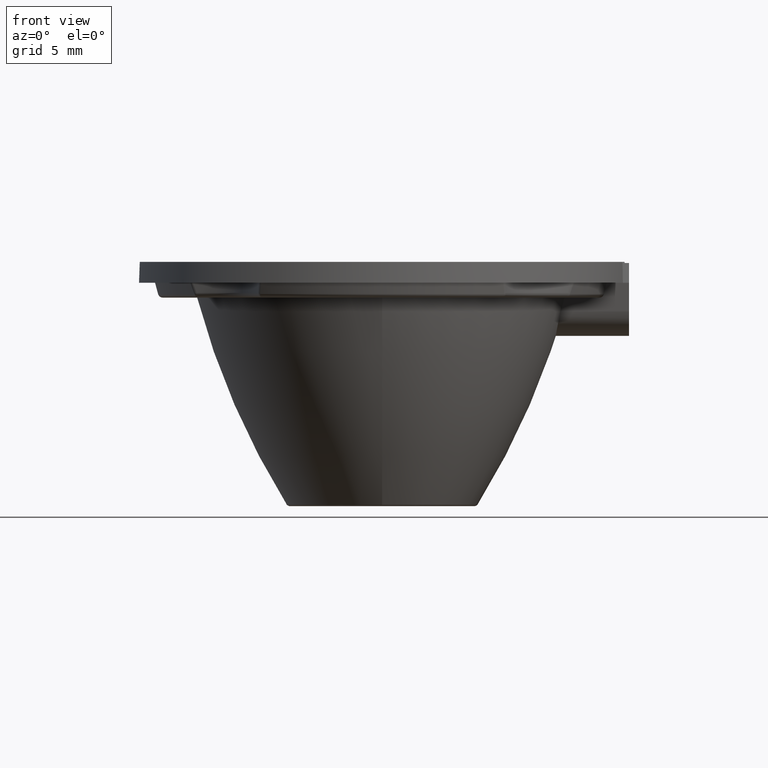
[diagram: clean part render]
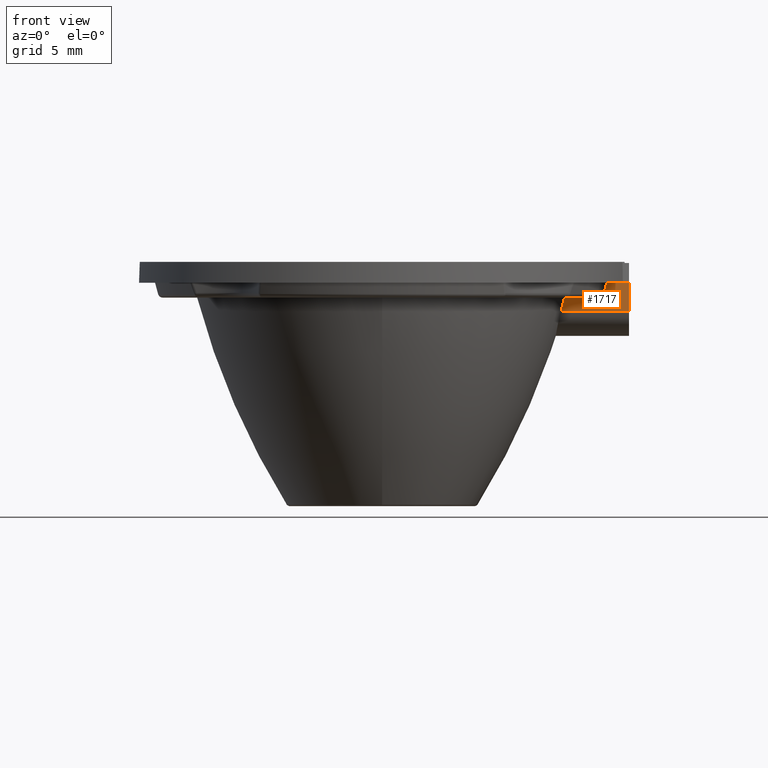
[diagram: same view with one face highlighted and labeled with its STEP entity id]
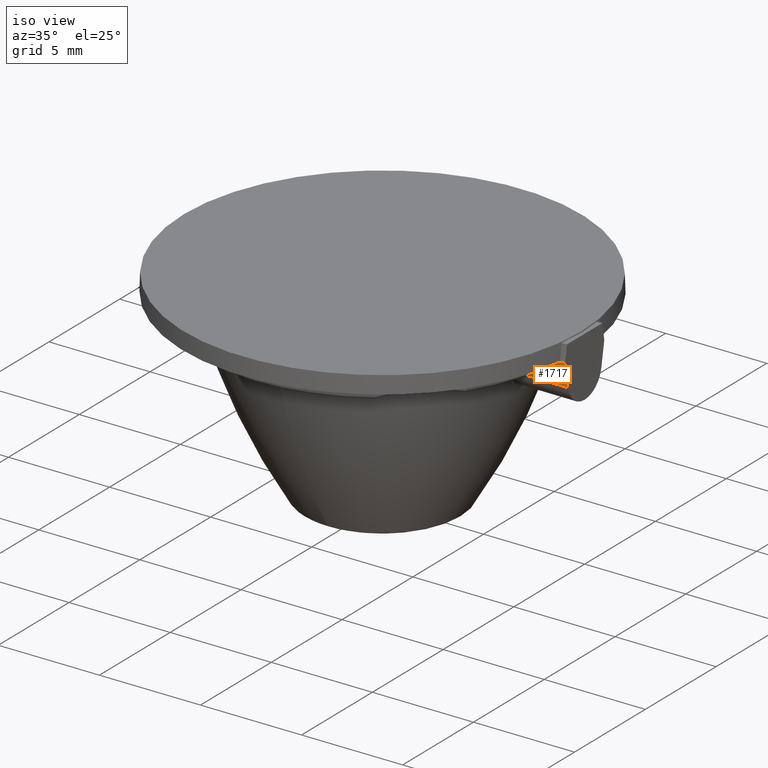
[diagram: same view with one face highlighted and labeled with its STEP entity id]
A machine part, front view. The second image highlights one B-rep face of the part: STEP entity #1717.
A second angle (iso view) of the same face is appended — the face is thin or edge-on in the first view.
In plain terms, the highlighted planar face has unit normal (-0, 0.9848, 0.1736).
Its self-contained STEP definition (entity closure, byte-faithful):
#19 = VECTOR ( 'NONE', #1369, 1000.000000000000000 ) ;
#42 = CARTESIAN_POINT ( 'NONE',  ( 9.751996792796681746, -1.386022565935929762, 10.80000000000000426 ) ) ;
#150 = CARTESIAN_POINT ( 'NONE',  ( 10.00000000000000000, -1.181769303614652156, 9.641622186799692074 ) ) ;
#151 = VECTOR ( 'NONE', #1706, 1000.000000000000000 ) ;
#209 = VECTOR ( 'NONE', #812, 1000.000000000000000 ) ;
#255 = CARTESIAN_POINT ( 'NONE',  ( 10.00000000000000000, -1.181769303614652156, 9.641622186799692074 ) ) ;
#300 = VERTEX_POINT ( 'NONE', #255 ) ;
#350 = CARTESIAN_POINT ( 'NONE',  ( 8.949712771279395795, -1.292250130334524849, 10.26819009079246214 ) ) ;
#367 = CARTESIAN_POINT ( 'NONE',  ( 10.00000000000000000, -1.386022565935929762, 10.80000000000000426 ) ) ;
#379 = VERTEX_POINT ( 'NONE', #1065 ) ;
#431 = CARTESIAN_POINT ( 'NONE',  ( 7.243942455039086070, -1.181769303614652156, 9.641622186799692074 ) ) ;
#460 = LINE ( 'NONE', #1647, #19 ) ;
#470 = EDGE_CURVE ( 'NONE', #1598, #379, #1088, .T. ) ;
#474 = CARTESIAN_POINT ( 'NONE',  ( 8.837243983094491995, -1.280226377510854441, 10.20000000000000107 ) ) ;
#503 = CARTESIAN_POINT ( 'NONE',  ( 8.793056442597512401, -1.280226377510854219, 10.20000000000000107 ) ) ;
#527 = LINE ( 'NONE', #880, #1921 ) ;
#535 = EDGE_CURVE ( 'NONE', #300, #813, #1630, .T. ) ;
#546 = ORIENTED_EDGE ( 'NONE', *, *, #1881, .T. ) ;
#564 = EDGE_CURVE ( 'NONE', #1598, #1138, #929, .T. ) ;
#602 = CARTESIAN_POINT ( 'NONE',  ( 9.021382102844702544, -1.332914264945690430, 10.49880785812326423 ) ) ;
#671 = CARTESIAN_POINT ( 'NONE',  ( 10.00000000000000000, -1.386022565935929762, 10.80000000000000426 ) ) ;
#676 = EDGE_CURVE ( 'NONE', #1312, #379, #1077, .T. ) ;
#687 = EDGE_CURVE ( 'NONE', #716, #1312, #1103, .T. ) ;
#716 = VERTEX_POINT ( 'NONE', #367 ) ;
#765 = CARTESIAN_POINT ( 'NONE',  ( 8.984472699645737137, -1.306364417498039776, 10.34823619097977243 ) ) ;
#777 = CARTESIAN_POINT ( 'NONE',  ( 8.984472699645737137, -1.306364417498039776, 10.34823619097977243 ) ) ;
#812 = DIRECTION ( 'NONE',  ( -1.000000000000000000, -0.0000000000000000000, -0.0000000000000000000 ) ) ;
#813 = VERTEX_POINT ( 'NONE', #986 ) ;
#820 = ORIENTED_EDGE ( 'NONE', *, *, #535, .F. ) ;
#880 = CARTESIAN_POINT ( 'NONE',  ( 10.00000000000000000, -1.386022565935929762, 10.80000000000000426 ) ) ;
#890 = CARTESIAN_POINT ( 'NONE',  ( 8.984472699645737137, -1.306364417498039776, 10.34823619097977243 ) ) ;
#894 = CARTESIAN_POINT ( 'NONE',  ( 10.00000000000000000, -1.386022565935929762, 10.80000000000000426 ) ) ;
#901 = CARTESIAN_POINT ( 'NONE',  ( 9.094995406635254298, -1.386022565935929762, 10.80000000000000071 ) ) ;
#929 = B_SPLINE_CURVE_WITH_KNOTS ( 'NONE', 3,
 ( #765, #1814, #350, #1829, #474, #503 ),
 .UNSPECIFIED., .F., .F.,
 ( 4, 2, 4 ),
 ( 6.526608911955533886E-17, 0.0001307138337496701816, 0.0002614276674992750942 ),
 .UNSPECIFIED. ) ;
#986 = CARTESIAN_POINT ( 'NONE',  ( 7.243942455039086070, -1.181769303614652156, 9.641622186799692074 ) ) ;
#1029 = EDGE_CURVE ( 'NONE', #716, #300, #527, .T. ) ;
#1065 = CARTESIAN_POINT ( 'NONE',  ( 9.094995406635254298, -1.386022565935929762, 10.80000000000000071 ) ) ;
#1077 = LINE ( 'NONE', #671, #209 ) ;
#1088 = B_SPLINE_CURVE_WITH_KNOTS ( 'NONE', 3,
 ( #890, #602, #1780, #901 ),
 .UNSPECIFIED., .F., .F.,
 ( 4, 4 ),
 ( 0.0001550613214130479084, 0.0006269206475494008141 ),
 .UNSPECIFIED. ) ;
#1097 = EDGE_CURVE ( 'NONE', #813, #1288, #1258, .T. ) ;
#1103 = LINE ( 'NONE', #1859, #151 ) ;
#1116 = DIRECTION ( 'NONE',  ( 0.0000000000000000000, 0.1736481776669242527, -0.9848077530122092416 ) ) ;
#1138 = VERTEX_POINT ( 'NONE', #1246 ) ;
#1180 = CARTESIAN_POINT ( 'NONE',  ( 7.292879793850645775, -1.214505210951701386, 9.827276742928997777 ) ) ;
#1200 = DIRECTION ( 'NONE',  ( -0.0000000000000000000, 0.9848077530122091305, 0.1736481776669241972 ) ) ;
#1224 = AXIS2_PLACEMENT_3D ( 'NONE', #894, #1200, #1497 ) ;
#1239 = VECTOR ( 'NONE', #1494, 1000.000000000000000 ) ;
#1246 = CARTESIAN_POINT ( 'NONE',  ( 8.793056442597512401, -1.280226377510854219, 10.20000000000000107 ) ) ;
#1258 = B_SPLINE_CURVE_WITH_KNOTS ( 'NONE', 3,
 ( #431, #1180, #1709, #1392 ),
 .UNSPECIFIED., .F., .F.,
 ( 4, 4 ),
 ( 2.098061261484289979E-07, 0.0005845102876734066880 ),
 .UNSPECIFIED. ) ;
#1288 = VERTEX_POINT ( 'NONE', #1412 ) ;
#1312 = VERTEX_POINT ( 'NONE', #42 ) ;
#1369 = DIRECTION ( 'NONE',  ( -1.000000000000000000, 0.0000000000000000000, 0.0000000000000000000 ) ) ;
#1392 = CARTESIAN_POINT ( 'NONE',  ( 7.385107164020456416, -1.280226377510854219, 10.20000000000000462 ) ) ;
#1393 = ORIENTED_EDGE ( 'NONE', *, *, #470, .F. ) ;
#1401 = ORIENTED_EDGE ( 'NONE', *, *, #1029, .F. ) ;
#1412 = CARTESIAN_POINT ( 'NONE',  ( 7.385107164020456416, -1.280226377510854219, 10.20000000000000462 ) ) ;
#1494 = DIRECTION ( 'NONE',  ( -1.000000000000000000, -0.0000000000000000000, -0.0000000000000000000 ) ) ;
#1497 = DIRECTION ( 'NONE',  ( 0.0000000000000000000, -0.1736481776669241972, 0.9848077530122091305 ) ) ;
#1598 = VERTEX_POINT ( 'NONE', #777 ) ;
#1630 = LINE ( 'NONE', #150, #1239 ) ;
#1632 = PLANE ( 'NONE',  #1224 ) ;
#1638 = ORIENTED_EDGE ( 'NONE', *, *, #687, .T. ) ;
#1647 = CARTESIAN_POINT ( 'NONE',  ( 10.00000000000000000, -1.280226377510854219, 10.20000000000000107 ) ) ;
#1697 = ORIENTED_EDGE ( 'NONE', *, *, #1097, .F. ) ;
#1706 = DIRECTION ( 'NONE',  ( -1.000000000000000000, -0.0000000000000000000, -0.0000000000000000000 ) ) ;
#1709 = CARTESIAN_POINT ( 'NONE',  ( 7.339940350016574300, -1.247327459247162817, 10.01342096296603223 ) ) ;
#1712 = ORIENTED_EDGE ( 'NONE', *, *, #564, .T. ) ;
#1717 = ADVANCED_FACE ( 'NONE', ( #1759 ), #1632, .F. ) ;
#1759 = FACE_OUTER_BOUND ( 'NONE', #1897, .T. ) ;
#1780 = CARTESIAN_POINT ( 'NONE',  ( 9.058222194534302218, -1.359467020578239094, 10.64939601840289463 ) ) ;
#1814 = CARTESIAN_POINT ( 'NONE',  ( 8.974103208230612694, -1.298905385619097297, 10.30593391908060319 ) ) ;
#1829 = CARTESIAN_POINT ( 'NONE',  ( 8.880326715200668630, -1.282776041470716555, 10.21445986286170005 ) ) ;
#1848 = ORIENTED_EDGE ( 'NONE', *, *, #676, .T. ) ;
#1859 = CARTESIAN_POINT ( 'NONE',  ( 10.00000000000000000, -1.386022565935929762, 10.80000000000000426 ) ) ;
#1881 = EDGE_CURVE ( 'NONE', #1138, #1288, #460, .T. ) ;
#1897 = EDGE_LOOP ( 'NONE', ( #546, #1697, #820, #1401, #1638, #1848, #1393, #1712 ) ) ;
#1921 = VECTOR ( 'NONE', #1116, 999.9999999999998863 ) ;